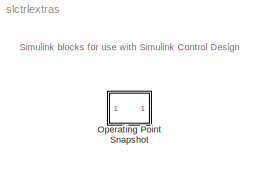
MODEL slctrlextras
KIND library
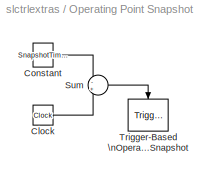
BLOCK [SubSystem] Operating Point Snapshot
  EnableExecutionContextPropagation = on
  MaskDescription = Generate linear models in the base workspace at specific times.\n
  MaskDisplay = disp(['T=' mat2str(SnapshotTimes)])\n\n
  MaskEnableString = on
  MaskHelp = This block calls LINMOD or DLINMOD to create a linear model for the system when the simulation clock reaches the time specified by the LinearizationTime parameter.  No trimming is performed.  The linear model is stored in the base workspace as a structure, along with information about the operating point at which the snapshot was taken.  Multiple snapshots are appended to form an array of structur...<+3ch>
  MaskIconFrame = on
  MaskIconOpaque = on
  MaskIconRotate = none
  MaskIconUnits = autoscale
  MaskPromptString = Operating point snapshot times:
  MaskStyleString = edit
  MaskToolTipString = on
  MaskTunableValueString = on
  MaskType = Time Operating Condition Snapshot
  MaskValueString = [1 2]
  MaskVariables = SnapshotTimes=@1;
  MaskVisibilityString = on
  MinAlgLoopOccurrences = off
  Ports = []
  TreatAsAtomicUnit = off
BLOCK [Clock] Operating Point Snapshot/Clock
  Decimation = 10
BLOCK [Constant] Operating Point Snapshot/Constant
  Value = SnapshotTimes
BLOCK [Sum] Operating Point Snapshot/Sum
  IconShape = round
  Inputs = -+
  Ports = [2, 1]
BLOCK [Reference] Operating Point Snapshot/Trigger-Based \nOperating Point\nSnapshot  REF=slctrlblks/Trigger-Based \nOperating Point\nSnapshot
  Ports = [0, 0, 0, 1]
  ShowPortLabels = on
  SourceBlock = slctrlblks/Trigger-Based \nOperating Point\nSnapshot
  SourceType = Triggered Operating Condition Snapshot
  TriggerType = rising
ANNOTATION (root): Simulink blocks for use with Simulink Control Design
LINE Operating Point Snapshot/Clock:1 -> Operating Point Snapshot/Sum:2
LINE Operating Point Snapshot/Constant:1 -> Operating Point Snapshot/Sum:1
LINE Operating Point Snapshot/Sum:1 -> Operating Point Snapshot/Trigger-Based \nOperating Point\nSnapshot:trigger
